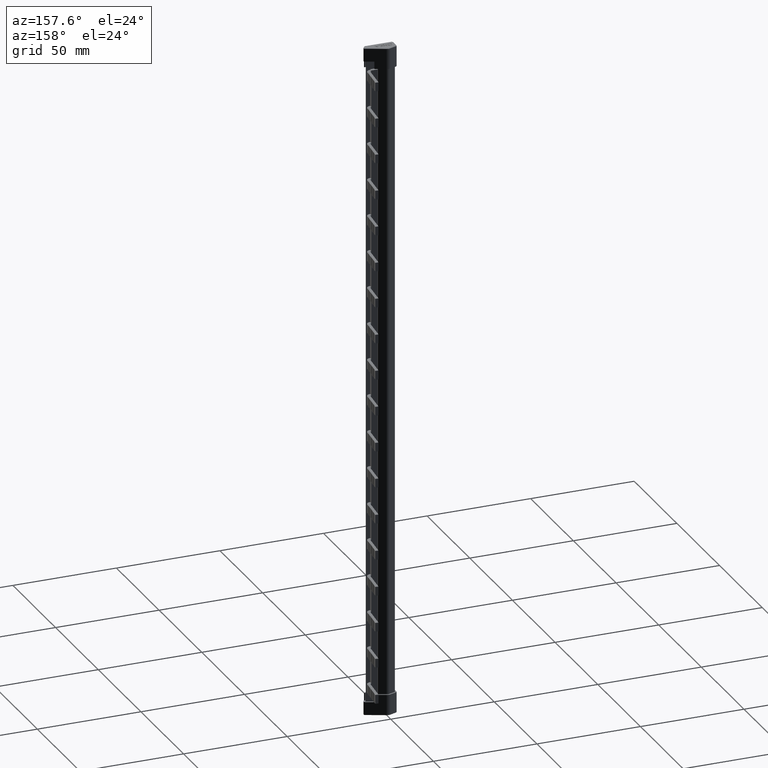
[diagram: clean part render]
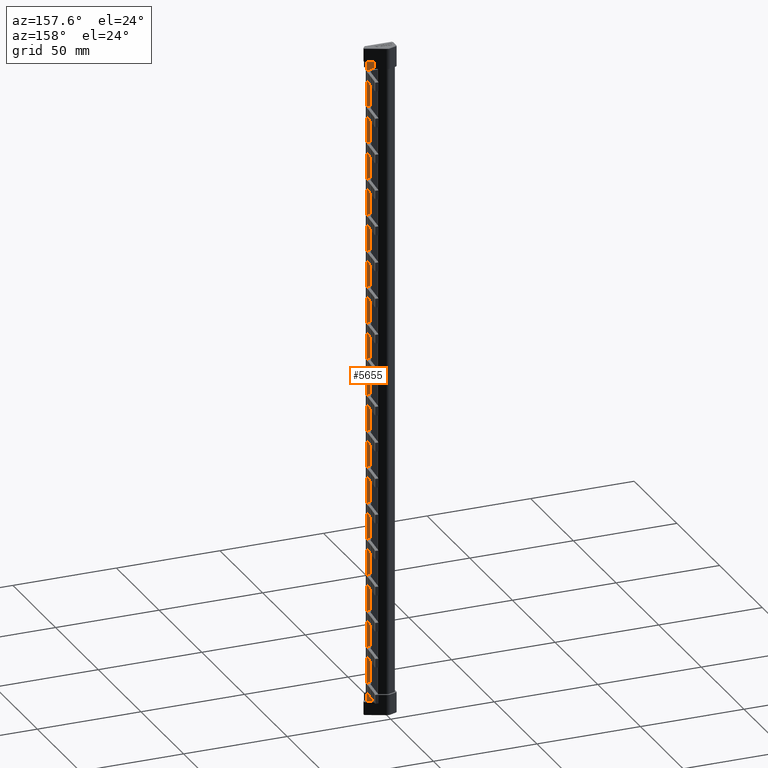
[diagram: same view with one face highlighted and labeled with its STEP entity id]
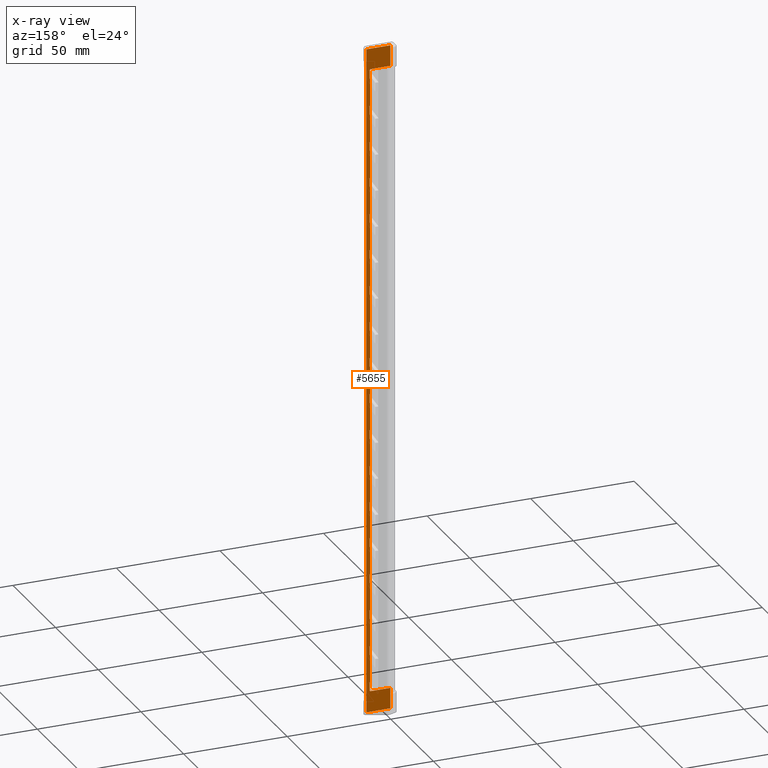
[diagram: x-ray of the same camera — body ghosted, the highlighted face saturated]
A machine part, auxiliary view. The second image highlights one B-rep face of the part: STEP entity #5655.
The next image is the same camera in x-ray: the body ghosted, the highlighted face saturated — about 0% of this face is hidden behind the body in this view.
In plain terms, the highlighted planar face has unit normal (-0, -1, 0).
Its self-contained STEP definition (entity closure, byte-faithful):
#509 = DIRECTION ( 'NONE',  ( -2.028973208167720500E-007, -0.9999999999999794600, 0.0000000000000000000 ) ) ;
#510 = DIRECTION ( 'NONE',  ( 0.9999999999999794600, -2.028973208167720500E-007, 0.0000000000000000000 ) ) ;
#521 = PLANE ( 'NONE',  #29227 ) ;
#523 = FACE_OUTER_BOUND ( 'NONE', #17394, .T. ) ;
#525 = CARTESIAN_POINT ( 'NONE',  ( 12.20616429985077500, 1.099999740055146400, 219.0000000000000000 ) ) ;
#5655 = ADVANCED_FACE ( 'NONE', ( #523 ), #521, .F. ) ;
#6374 = VECTOR ( 'NONE', #19510, 1000.000000000000000 ) ;
#6408 = VECTOR ( 'NONE', #19505, 1000.000000000000000 ) ;
#6420 = VECTOR ( 'NONE', #19557, 1000.000000000000000 ) ;
#6422 = VECTOR ( 'NONE', #15770, 1000.000000000000000 ) ;
#6423 = VECTOR ( 'NONE', #21524, 1000.000000000000000 ) ;
#6425 = VECTOR ( 'NONE', #19518, 1000.000000000000000 ) ;
#6438 = VECTOR ( 'NONE', #15754, 1000.000000000000000 ) ;
#6441 = VECTOR ( 'NONE', #15763, 1000.000000000000000 ) ;
#6445 = VECTOR ( 'NONE', #19551, 1000.000000000000000 ) ;
#6446 = VECTOR ( 'NONE', #15775, 1000.000000000000000 ) ;
#6448 = VECTOR ( 'NONE', #15772, 1000.000000000000000 ) ;
#6451 = VECTOR ( 'NONE', #14779, 1000.000000000000000 ) ;
#6453 = VECTOR ( 'NONE', #19500, 1000.000000000000000 ) ;
#6464 = VECTOR ( 'NONE', #19531, 1000.000000000000000 ) ;
#6467 = VECTOR ( 'NONE', #19582, 1000.000000000000000 ) ;
#6470 = VECTOR ( 'NONE', #15803, 1000.000000000000000 ) ;
#6471 = VECTOR ( 'NONE', #14802, 1000.000000000000000 ) ;
#6484 = VECTOR ( 'NONE', #14914, 1000.000000000000000 ) ;
#6503 = VECTOR ( 'NONE', #14948, 1000.000000000000000 ) ;
#6588 = VECTOR ( 'NONE', #15075, 1000.000000000000000 ) ;
#6611 = VECTOR ( 'NONE', #15092, 1000.000000000000000 ) ;
#6668 = VECTOR ( 'NONE', #15343, 1000.000000000000000 ) ;
#7316 = VECTOR ( 'NONE', #18824, 1000.000000000000000 ) ;
#7321 = VECTOR ( 'NONE', #18713, 1000.000000000000000 ) ;
#7324 = VECTOR ( 'NONE', #18738, 1000.000000000000000 ) ;
#7333 = VECTOR ( 'NONE', #18780, 1000.000000000000000 ) ;
#7334 = VECTOR ( 'NONE', #18790, 1000.000000000000000 ) ;
#7340 = VECTOR ( 'NONE', #18693, 1000.000000000000000 ) ;
#7348 = VECTOR ( 'NONE', #18703, 1000.000000000000000 ) ;
#7362 = VECTOR ( 'NONE', #18762, 1000.000000000000000 ) ;
#7371 = VECTOR ( 'NONE', #18808, 1000.000000000000000 ) ;
#7372 = VECTOR ( 'NONE', #18770, 1000.000000000000000 ) ;
#7373 = VECTOR ( 'NONE', #18840, 1000.000000000000000 ) ;
#7398 = VECTOR ( 'NONE', #19048, 1000.000000000000000 ) ;
#7407 = VECTOR ( 'NONE', #18969, 1000.000000000000000 ) ;
#7420 = VECTOR ( 'NONE', #18865, 1000.000000000000000 ) ;
#7422 = VECTOR ( 'NONE', #18925, 1000.000000000000000 ) ;
#7443 = VECTOR ( 'NONE', #19107, 1000.000000000000000 ) ;
#7446 = VECTOR ( 'NONE', #19096, 1000.000000000000000 ) ;
#7454 = VECTOR ( 'NONE', #19105, 1000.000000000000000 ) ;
#7736 = CARTESIAN_POINT ( 'NONE',  ( 10.58351463784666000, 1.100000069286415400, 219.0000000000000000 ) ) ;
#7740 = DIRECTION ( 'NONE',  ( -0.0000000000000000000, -0.0000000000000000000, -1.000000000000000000 ) ) ;
#7749 = CARTESIAN_POINT ( 'NONE',  ( 10.37430495582775900, 1.100000111734499500, 219.0000000000000000 ) ) ;
#7751 = DIRECTION ( 'NONE',  ( -0.0000000000000000000, -0.0000000000000000000, -1.000000000000000000 ) ) ;
#7754 = LINE ( 'NONE', #7749, #25068 ) ;
#7755 = LINE ( 'NONE', #7757, #25090 ) ;
#7757 = CARTESIAN_POINT ( 'NONE',  ( 10.58351463784666000, 1.100000069286415400, 219.0000000000000000 ) ) ;
#7758 = DIRECTION ( 'NONE',  ( -0.0000000000000000000, -0.0000000000000000000, -1.000000000000000000 ) ) ;
#7762 = DIRECTION ( 'NONE',  ( -0.0000000000000000000, -0.0000000000000000000, -1.000000000000000000 ) ) ;
#7764 = LINE ( 'NONE', #7807, #25093 ) ;
#7779 = LINE ( 'NONE', #7736, #25027 ) ;
#7780 = CARTESIAN_POINT ( 'NONE',  ( 10.58351463784666000, 1.100000069286415400, 219.0000000000000000 ) ) ;
#7807 = CARTESIAN_POINT ( 'NONE',  ( 10.37430495582775900, 1.100000111734499500, 219.0000000000000000 ) ) ;
#7810 = DIRECTION ( 'NONE',  ( -0.0000000000000000000, -0.0000000000000000000, -1.000000000000000000 ) ) ;
#8220 = DIRECTION ( 'NONE',  ( 0.9999999999999794600, -2.028973208167720500E-007, 1.654363045001526200E-024 ) ) ;
#8238 = CARTESIAN_POINT ( 'NONE',  ( 10.39174218936983300, 1.100000108196531400, 116.4000000000000200 ) ) ;
#8268 = CARTESIAN_POINT ( 'NONE',  ( 10.37430495582723300, 1.100000356056294300, 209.0000000000000000 ) ) ;
#8270 = CARTESIAN_POINT ( 'NONE',  ( 10.37430495582775900, 1.100000111734499500, -90.50000000000000000 ) ) ;
#8276 = CARTESIAN_POINT ( 'NONE',  ( 10.58351463784666000, 1.100000069286415400, -59.59999999999995900 ) ) ;
#8279 = CARTESIAN_POINT ( 'NONE',  ( 10.37430495582775900, 1.100000111734499500, 10.80000000000000400 ) ) ;
#8295 = CARTESIAN_POINT ( 'NONE',  ( 10.37430495582775900, 1.100000111734499500, 28.40000000000000900 ) ) ;
#8311 = CARTESIAN_POINT ( 'NONE',  ( 10.37430495582775900, 1.100000111734499500, -77.20000000000001700 ) ) ;
#8313 = CARTESIAN_POINT ( 'NONE',  ( 10.58351463784666000, 1.100000069286415400, -94.79999999999996900 ) ) ;
#8314 = CARTESIAN_POINT ( 'NONE',  ( 10.37430495582775900, 1.100000111734499500, -37.69999999999998200 ) ) ;
#8319 = CARTESIAN_POINT ( 'NONE',  ( 10.58351463784666000, 1.100000069286415400, -20.09999999999998000 ) ) ;
#8323 = CARTESIAN_POINT ( 'NONE',  ( 10.37430495582775900, 1.100000111734499500, -72.89999999999999100 ) ) ;
#8324 = CARTESIAN_POINT ( 'NONE',  ( 0.5999928904458802200, 1.100002094916230400, 209.0000000000000000 ) ) ;
#8329 = CARTESIAN_POINT ( 'NONE',  ( 0.5999928904455424900, 1.100001048311304300, -94.99999999999992900 ) ) ;
#8377 = CARTESIAN_POINT ( 'NONE',  ( 0.5999928904457125800, 1.100000983612816400, 219.0000000000000000 ) ) ;
#8390 = CARTESIAN_POINT ( 'NONE',  ( 10.37430495582740000, 1.099999522800265500, -94.99999999999997200 ) ) ;
#8391 = CARTESIAN_POINT ( 'NONE',  ( 12.20616429985077500, 1.099999740055146900, -104.9999999999999600 ) ) ;
#8407 = CARTESIAN_POINT ( 'NONE',  ( 0.5999928904455442700, 1.100000001706378200, -104.9999999999999400 ) ) ;
#8410 = DIRECTION ( 'NONE',  ( -0.0000000000000000000, -0.0000000000000000000, -1.000000000000000000 ) ) ;
#8414 = CARTESIAN_POINT ( 'NONE',  ( 10.58351463784666000, 1.100000069286415400, 219.0000000000000000 ) ) ;
#8420 = LINE ( 'NONE', #8414, #24997 ) ;
#8432 = LINE ( 'NONE', #8484, #24982 ) ;
#8437 = CARTESIAN_POINT ( 'NONE',  ( 12.20616429985077500, 1.099999893835187800, 219.0000000000000000 ) ) ;
#8484 = CARTESIAN_POINT ( 'NONE',  ( 10.58351463784666000, 1.100000069286415400, 219.0000000000000000 ) ) ;
#8490 = DIRECTION ( 'NONE',  ( -0.0000000000000000000, -0.0000000000000000000, -1.000000000000000000 ) ) ;
#8504 = CARTESIAN_POINT ( 'NONE',  ( 10.58351463784666000, 1.100000069286415400, 219.0000000000000000 ) ) ;
#8515 = CARTESIAN_POINT ( 'NONE',  ( 10.58351463784666000, 1.100000069286415400, 219.0000000000000000 ) ) ;
#8526 = DIRECTION ( 'NONE',  ( -0.0000000000000000000, -0.0000000000000000000, -1.000000000000000000 ) ) ;
#8531 = DIRECTION ( 'NONE',  ( -0.0000000000000000000, -0.0000000000000000000, -1.000000000000000000 ) ) ;
#8541 = LINE ( 'NONE', #8504, #24967 ) ;
#8543 = LINE ( 'NONE', #8515, #24954 ) ;
#8666 = DIRECTION ( 'NONE',  ( -0.0000000000000000000, -0.0000000000000000000, -1.000000000000000000 ) ) ;
#8683 = CARTESIAN_POINT ( 'NONE',  ( 10.58351463784666000, 1.100000069286415400, 219.0000000000000000 ) ) ;
#8684 = LINE ( 'NONE', #8692, #25031 ) ;
#8685 = DIRECTION ( 'NONE',  ( -0.0000000000000000000, -0.0000000000000000000, -1.000000000000000000 ) ) ;
#8692 = CARTESIAN_POINT ( 'NONE',  ( 10.58351463784666000, 1.100000069286415400, 219.0000000000000000 ) ) ;
#8706 = LINE ( 'NONE', #8683, #25061 ) ;
#8729 = LINE ( 'NONE', #8791, #25035 ) ;
#8740 = CARTESIAN_POINT ( 'NONE',  ( 10.58351463784666000, 1.100000069286415400, 219.0000000000000000 ) ) ;
#8746 = DIRECTION ( 'NONE',  ( -0.0000000000000000000, -0.0000000000000000000, -1.000000000000000000 ) ) ;
#8747 = LINE ( 'NONE', #8740, #25046 ) ;
#8757 = DIRECTION ( 'NONE',  ( -0.0000000000000000000, -0.0000000000000000000, -1.000000000000000000 ) ) ;
#8760 = LINE ( 'NONE', #8794, #25051 ) ;
#8762 = CARTESIAN_POINT ( 'NONE',  ( 10.58351463784666000, 1.100000069286415400, 219.0000000000000000 ) ) ;
#8764 = CARTESIAN_POINT ( 'NONE',  ( 10.58351463784666000, 1.100000069286415400, 219.0000000000000000 ) ) ;
#8767 = LINE ( 'NONE', #8238, #24620 ) ;
#8769 = DIRECTION ( 'NONE',  ( -0.0000000000000000000, -0.0000000000000000000, -1.000000000000000000 ) ) ;
#8770 = DIRECTION ( 'NONE',  ( -0.0000000000000000000, -0.0000000000000000000, -1.000000000000000000 ) ) ;
#8772 = CARTESIAN_POINT ( 'NONE',  ( 10.37430495582775900, 1.100000111734499500, 219.0000000000000000 ) ) ;
#8773 = CARTESIAN_POINT ( 'NONE',  ( 10.37430495582775900, 1.100000111734499500, 219.0000000000000000 ) ) ;
#8774 = CARTESIAN_POINT ( 'NONE',  ( 10.37430495582775900, 1.100000111734499500, 219.0000000000000000 ) ) ;
#8778 = LINE ( 'NONE', #8772, #25038 ) ;
#8779 = DIRECTION ( 'NONE',  ( -0.0000000000000000000, -0.0000000000000000000, -1.000000000000000000 ) ) ;
#8780 = LINE ( 'NONE', #8773, #25000 ) ;
#8781 = LINE ( 'NONE', #8762, #25047 ) ;
#8784 = DIRECTION ( 'NONE',  ( -0.0000000000000000000, -0.0000000000000000000, -1.000000000000000000 ) ) ;
#8786 = LINE ( 'NONE', #8774, #25005 ) ;
#8791 = CARTESIAN_POINT ( 'NONE',  ( 10.58351463784666000, 1.100000069286415400, 219.0000000000000000 ) ) ;
#8792 = LINE ( 'NONE', #8764, #25062 ) ;
#8794 = CARTESIAN_POINT ( 'NONE',  ( 10.37430495582775900, 1.100000111734499500, 219.0000000000000000 ) ) ;
#8798 = DIRECTION ( 'NONE',  ( -0.0000000000000000000, -0.0000000000000000000, -1.000000000000000000 ) ) ;
#8799 = DIRECTION ( 'NONE',  ( -0.0000000000000000000, -0.0000000000000000000, -1.000000000000000000 ) ) ;
#8806 = CARTESIAN_POINT ( 'NONE',  ( 10.58351463784666000, 1.100000069286415400, 219.0000000000000000 ) ) ;
#8809 = LINE ( 'NONE', #8837, #25042 ) ;
#8812 = LINE ( 'NONE', #8806, #25012 ) ;
#8818 = CARTESIAN_POINT ( 'NONE',  ( 10.37430495582721900, 1.099998344931796300, 209.0000000000000300 ) ) ;
#8825 = LINE ( 'NONE', #8818, #25040 ) ;
#8826 = DIRECTION ( 'NONE',  ( 1.654357377733165500E-024, 0.0000000000000000000, -1.000000000000000000 ) ) ;
#8828 = DIRECTION ( 'NONE',  ( -0.0000000000000000000, -0.0000000000000000000, -1.000000000000000000 ) ) ;
#8835 = LINE ( 'NONE', #7780, #25002 ) ;
#8837 = CARTESIAN_POINT ( 'NONE',  ( 10.37430495582775900, 1.100000111734499500, 219.0000000000000000 ) ) ;
#8838 = DIRECTION ( 'NONE',  ( -0.0000000000000000000, -0.0000000000000000000, -1.000000000000000000 ) ) ;
#9745 = CARTESIAN_POINT ( 'NONE',  ( 10.37430495582721900, 1.099999853109018300, 208.7000000000000700 ) ) ;
#9782 = CARTESIAN_POINT ( 'NONE',  ( 10.37430495582775900, 1.100000111734499500, 186.8000000000000100 ) ) ;
#9806 = CARTESIAN_POINT ( 'NONE',  ( 10.58351463784666000, 1.100000069286415400, 208.7000000000000700 ) ) ;
#9817 = CARTESIAN_POINT ( 'NONE',  ( 10.58351463784666000, 1.100000069286415400, 120.7000000000000200 ) ) ;
#9824 = CARTESIAN_POINT ( 'NONE',  ( 10.37430495582775900, 1.100000111734499500, 155.9000000000000900 ) ) ;
#9840 = CARTESIAN_POINT ( 'NONE',  ( 10.37430495582775900, 1.100000111734499500, 85.50000000000001400 ) ) ;
#9845 = CARTESIAN_POINT ( 'NONE',  ( 10.37430495582775900, 1.100000111734499500, 46.00000000000001400 ) ) ;
#9849 = CARTESIAN_POINT ( 'NONE',  ( 10.58351463784666000, 1.100000069286415400, 204.4000000000000300 ) ) ;
#9858 = CARTESIAN_POINT ( 'NONE',  ( 10.58351463784666000, 1.100000069286415400, 81.20000000000004500 ) ) ;
#9859 = CARTESIAN_POINT ( 'NONE',  ( 10.58351463784666000, 1.100000069286415400, 63.60000000000001600 ) ) ;
#9864 = CARTESIAN_POINT ( 'NONE',  ( 10.37430495582775900, 1.100000111734499500, 204.4000000000000300 ) ) ;
#9866 = CARTESIAN_POINT ( 'NONE',  ( 10.37430495582775900, 1.100000111734499500, 173.5000000000000300 ) ) ;
#9868 = CARTESIAN_POINT ( 'NONE',  ( 10.37430495582775900, 1.100000111734499500, 103.1000000000000200 ) ) ;
#9873 = CARTESIAN_POINT ( 'NONE',  ( 10.58351463784666000, 1.100000069286415400, 98.80000000000002600 ) ) ;
#9874 = CARTESIAN_POINT ( 'NONE',  ( 10.37430495582721900, 1.099998344931796300, -94.79999999999999700 ) ) ;
#9876 = CARTESIAN_POINT ( 'NONE',  ( 10.37430495582775900, 1.100000111734499500, -20.09999999999998000 ) ) ;
#9878 = CARTESIAN_POINT ( 'NONE',  ( 10.37430495582775900, 1.100000111734499500, 32.70000000000001000 ) ) ;
#9880 = CARTESIAN_POINT ( 'NONE',  ( 10.37430495582775900, 1.100000111734499500, 138.3000000000000400 ) ) ;
#9882 = CARTESIAN_POINT ( 'NONE',  ( 10.58351463784666000, 1.100000069286415400, 116.4000000000000200 ) ) ;
#9883 = CARTESIAN_POINT ( 'NONE',  ( 10.58351463784666000, 1.100000069286415400, 103.1000000000000200 ) ) ;
#9885 = CARTESIAN_POINT ( 'NONE',  ( 10.58351463784666000, 1.100000069286415400, 138.3000000000000400 ) ) ;
#9886 = CARTESIAN_POINT ( 'NONE',  ( 10.58351463784666000, 1.100000069286415400, 173.5000000000000300 ) ) ;
#9887 = CARTESIAN_POINT ( 'NONE',  ( 10.37430495582775900, 1.100000111734499500, 63.60000000000001600 ) ) ;
#9890 = CARTESIAN_POINT ( 'NONE',  ( 10.58351463784666000, 1.100000069286415400, 32.70000000000001000 ) ) ;
#9895 = CARTESIAN_POINT ( 'NONE',  ( 10.37430495582775900, 1.100000111734499500, -2.499999999999974200 ) ) ;
#9898 = CARTESIAN_POINT ( 'NONE',  ( 10.37430495582775900, 1.100000111734499500, 116.4000000000000200 ) ) ;
#9899 = CARTESIAN_POINT ( 'NONE',  ( 10.37430495582775900, 1.100000111734499500, 67.90000000000004800 ) ) ;
#9900 = CARTESIAN_POINT ( 'NONE',  ( 10.58351463784666000, 1.100000069286415400, 186.8000000000000100 ) ) ;
#9904 = CARTESIAN_POINT ( 'NONE',  ( 10.37430495582775900, 1.100000111734499500, 151.6000000000000200 ) ) ;
#9907 = CARTESIAN_POINT ( 'NONE',  ( 10.58351463784666000, 1.100000069286415400, 28.40000000000000900 ) ) ;
#9909 = CARTESIAN_POINT ( 'NONE',  ( 10.58351463784666000, 1.100000069286415400, -2.499999999999974200 ) ) ;
#9911 = CARTESIAN_POINT ( 'NONE',  ( 10.58351463784666000, 1.100000069286415400, -41.99999999999995700 ) ) ;
#9913 = CARTESIAN_POINT ( 'NONE',  ( 10.37430495582775900, 1.100000111734499500, 81.20000000000004500 ) ) ;
#9921 = CARTESIAN_POINT ( 'NONE',  ( 10.37430495582775900, 1.100000111734499500, 169.2000000000000700 ) ) ;
#9923 = CARTESIAN_POINT ( 'NONE',  ( 10.58351463784666000, 1.100000069286415400, 151.6000000000000200 ) ) ;
#9926 = CARTESIAN_POINT ( 'NONE',  ( 10.37430495582775900, 1.100000111734499500, 120.7000000000000200 ) ) ;
#9927 = CARTESIAN_POINT ( 'NONE',  ( 10.58351463784666000, 1.100000069286415400, -37.69999999999998200 ) ) ;
#9929 = CARTESIAN_POINT ( 'NONE',  ( 10.58351463784666000, 1.100000069286415400, 67.90000000000004800 ) ) ;
#9930 = CARTESIAN_POINT ( 'NONE',  ( 10.37430495582775900, 1.100000111734499500, 98.80000000000002600 ) ) ;
#9933 = CARTESIAN_POINT ( 'NONE',  ( 10.58351463784666000, 1.100000069286415400, 134.0000000000000000 ) ) ;
#9934 = CARTESIAN_POINT ( 'NONE',  ( 10.58351463784666000, 1.100000069286415400, 50.30000000000001100 ) ) ;
#9935 = CARTESIAN_POINT ( 'NONE',  ( 10.58351463784666000, 1.100000069286415400, -72.89999999999999100 ) ) ;
#9936 = CARTESIAN_POINT ( 'NONE',  ( 10.58351463784666000, 1.100000069286415400, -77.20000000000001700 ) ) ;
#9937 = CARTESIAN_POINT ( 'NONE',  ( 10.37430495582775900, 1.100000111734499500, 134.0000000000000000 ) ) ;
#9939 = CARTESIAN_POINT ( 'NONE',  ( 10.58351463784666000, 1.100000069286415400, -55.29999999999999000 ) ) ;
#9941 = CARTESIAN_POINT ( 'NONE',  ( 10.58351463784666000, 1.100000069286415400, -6.799999999999972300 ) ) ;
#9942 = CARTESIAN_POINT ( 'NONE',  ( 10.37430495582775900, 1.100000111734499500, -59.59999999999995900 ) ) ;
#9944 = CARTESIAN_POINT ( 'NONE',  ( 10.58351463784666000, 1.100000069286415400, 191.1000000000000200 ) ) ;
#9947 = CARTESIAN_POINT ( 'NONE',  ( 10.58351463784666000, 1.100000069286415400, 169.2000000000000700 ) ) ;
#9949 = CARTESIAN_POINT ( 'NONE',  ( 10.58351463784666000, 1.100000069286415400, 15.10000000000000100 ) ) ;
#9950 = CARTESIAN_POINT ( 'NONE',  ( 10.37430495582775900, 1.100000111734499500, -24.39999999999997700 ) ) ;
#9953 = CARTESIAN_POINT ( 'NONE',  ( 10.37430495582775900, 1.100000111734499500, -41.99999999999995700 ) ) ;
#9959 = CARTESIAN_POINT ( 'NONE',  ( 10.58351463784666000, 1.100000069286415400, 46.00000000000001400 ) ) ;
#9961 = CARTESIAN_POINT ( 'NONE',  ( 10.37430495582775900, 1.100000111734499500, -6.799999999999972300 ) ) ;
#9962 = CARTESIAN_POINT ( 'NONE',  ( 10.58351463784666000, 1.100000069286415400, -90.50000000000000000 ) ) ;
#9963 = CARTESIAN_POINT ( 'NONE',  ( 10.58351463784666000, 1.100000069286415400, 85.50000000000001400 ) ) ;
#9968 = CARTESIAN_POINT ( 'NONE',  ( 10.58351463784666000, 1.100000069286415400, 10.80000000000000400 ) ) ;
#9969 = CARTESIAN_POINT ( 'NONE',  ( 10.58351463784666000, 1.100000069286415400, 155.9000000000000900 ) ) ;
#9970 = CARTESIAN_POINT ( 'NONE',  ( 10.37430495582775900, 1.100000111734499500, 15.10000000000000100 ) ) ;
#9973 = CARTESIAN_POINT ( 'NONE',  ( 10.37430495582775900, 1.100000111734499500, 191.1000000000000200 ) ) ;
#9977 = CARTESIAN_POINT ( 'NONE',  ( 10.37430495582775900, 1.100000111734499500, -55.29999999999999000 ) ) ;
#9981 = CARTESIAN_POINT ( 'NONE',  ( 10.58351463784666000, 1.100000069286415400, -24.39999999999997700 ) ) ;
#9985 = CARTESIAN_POINT ( 'NONE',  ( 10.37430495582775900, 1.100000111734499500, 50.30000000000001100 ) ) ;
#11497 = ORIENTED_EDGE ( 'NONE', *, *, #27564, .T. ) ;
#11498 = ORIENTED_EDGE ( 'NONE', *, *, #27509, .F. ) ;
#11504 = ORIENTED_EDGE ( 'NONE', *, *, #27481, .F. ) ;
#11505 = ORIENTED_EDGE ( 'NONE', *, *, #22721, .F. ) ;
#11515 = ORIENTED_EDGE ( 'NONE', *, *, #21896, .F. ) ;
#11516 = ORIENTED_EDGE ( 'NONE', *, *, #22802, .F. ) ;
#11541 = ORIENTED_EDGE ( 'NONE', *, *, #22669, .F. ) ;
#11543 = ORIENTED_EDGE ( 'NONE', *, *, #22711, .T. ) ;
#11544 = ORIENTED_EDGE ( 'NONE', *, *, #27654, .T. ) ;
#11548 = ORIENTED_EDGE ( 'NONE', *, *, #27472, .F. ) ;
#11552 = ORIENTED_EDGE ( 'NONE', *, *, #27486, .F. ) ;
#11553 = ORIENTED_EDGE ( 'NONE', *, *, #22572, .F. ) ;
#11554 = ORIENTED_EDGE ( 'NONE', *, *, #22698, .T. ) ;
#11557 = ORIENTED_EDGE ( 'NONE', *, *, #22809, .T. ) ;
#11558 = ORIENTED_EDGE ( 'NONE', *, *, #22767, .T. ) ;
#11559 = ORIENTED_EDGE ( 'NONE', *, *, #22811, .T. ) ;
#11560 = ORIENTED_EDGE ( 'NONE', *, *, #22733, .T. ) ;
#11563 = ORIENTED_EDGE ( 'NONE', *, *, #27513, .F. ) ;
#11564 = ORIENTED_EDGE ( 'NONE', *, *, #22808, .T. ) ;
#11565 = ORIENTED_EDGE ( 'NONE', *, *, #27519, .F. ) ;
#11566 = ORIENTED_EDGE ( 'NONE', *, *, #22774, .F. ) ;
#11568 = ORIENTED_EDGE ( 'NONE', *, *, #27602, .T. ) ;
#11569 = ORIENTED_EDGE ( 'NONE', *, *, #27563, .F. ) ;
#11573 = ORIENTED_EDGE ( 'NONE', *, *, #22679, .F. ) ;
#11575 = ORIENTED_EDGE ( 'NONE', *, *, #27485, .F. ) ;
#11576 = ORIENTED_EDGE ( 'NONE', *, *, #21880, .F. ) ;
#11577 = ORIENTED_EDGE ( 'NONE', *, *, #27495, .F. ) ;
#11578 = ORIENTED_EDGE ( 'NONE', *, *, #21920, .F. ) ;
#11581 = ORIENTED_EDGE ( 'NONE', *, *, #22700, .F. ) ;
#11586 = ORIENTED_EDGE ( 'NONE', *, *, #27492, .F. ) ;
#11587 = ORIENTED_EDGE ( 'NONE', *, *, #22724, .T. ) ;
#11589 = ORIENTED_EDGE ( 'NONE', *, *, #27510, .F. ) ;
#11590 = ORIENTED_EDGE ( 'NONE', *, *, #22736, .T. ) ;
#11592 = ORIENTED_EDGE ( 'NONE', *, *, #22750, .F. ) ;
#11593 = ORIENTED_EDGE ( 'NONE', *, *, #21862, .F. ) ;
#11594 = ORIENTED_EDGE ( 'NONE', *, *, #27603, .F. ) ;
#11596 = ORIENTED_EDGE ( 'NONE', *, *, #22714, .F. ) ;
#11598 = ORIENTED_EDGE ( 'NONE', *, *, #21905, .F. ) ;
#11601 = ORIENTED_EDGE ( 'NONE', *, *, #22783, .T. ) ;
#11602 = ORIENTED_EDGE ( 'NONE', *, *, #27506, .F. ) ;
#11603 = ORIENTED_EDGE ( 'NONE', *, *, #21917, .F. ) ;
#11606 = ORIENTED_EDGE ( 'NONE', *, *, #27482, .F. ) ;
#11607 = ORIENTED_EDGE ( 'NONE', *, *, #27507, .F. ) ;
#11608 = ORIENTED_EDGE ( 'NONE', *, *, #27504, .F. ) ;
#11609 = ORIENTED_EDGE ( 'NONE', *, *, #21897, .F. ) ;
#11610 = ORIENTED_EDGE ( 'NONE', *, *, #27473, .F. ) ;
#11612 = ORIENTED_EDGE ( 'NONE', *, *, #22675, .F. ) ;
#11615 = ORIENTED_EDGE ( 'NONE', *, *, #22697, .T. ) ;
#11619 = ORIENTED_EDGE ( 'NONE', *, *, #21784, .F. ) ;
#11620 = ORIENTED_EDGE ( 'NONE', *, *, #21886, .F. ) ;
#11621 = ORIENTED_EDGE ( 'NONE', *, *, #22737, .F. ) ;
#11622 = ORIENTED_EDGE ( 'NONE', *, *, #22658, .T. ) ;
#11623 = ORIENTED_EDGE ( 'NONE', *, *, #22631, .T. ) ;
#11624 = ORIENTED_EDGE ( 'NONE', *, *, #22734, .F. ) ;
#11625 = ORIENTED_EDGE ( 'NONE', *, *, #21875, .F. ) ;
#11626 = ORIENTED_EDGE ( 'NONE', *, *, #22616, .F. ) ;
#11628 = ORIENTED_EDGE ( 'NONE', *, *, #21818, .F. ) ;
#11630 = ORIENTED_EDGE ( 'NONE', *, *, #21825, .F. ) ;
#11631 = ORIENTED_EDGE ( 'NONE', *, *, #22619, .T. ) ;
#11633 = ORIENTED_EDGE ( 'NONE', *, *, #21856, .F. ) ;
#11635 = ORIENTED_EDGE ( 'NONE', *, *, #22642, .F. ) ;
#11636 = ORIENTED_EDGE ( 'NONE', *, *, #21916, .F. ) ;
#11637 = ORIENTED_EDGE ( 'NONE', *, *, #21882, .F. ) ;
#11640 = ORIENTED_EDGE ( 'NONE', *, *, #22644, .T. ) ;
#11641 = ORIENTED_EDGE ( 'NONE', *, *, #21881, .F. ) ;
#11645 = ORIENTED_EDGE ( 'NONE', *, *, #21853, .F. ) ;
#11647 = ORIENTED_EDGE ( 'NONE', *, *, #22745, .T. ) ;
#11648 = ORIENTED_EDGE ( 'NONE', *, *, #22618, .T. ) ;
#11649 = ORIENTED_EDGE ( 'NONE', *, *, #21892, .F. ) ;
#11650 = ORIENTED_EDGE ( 'NONE', *, *, #27470, .F. ) ;
#11654 = ORIENTED_EDGE ( 'NONE', *, *, #22637, .F. ) ;
#11658 = ORIENTED_EDGE ( 'NONE', *, *, #21906, .F. ) ;
#11659 = ORIENTED_EDGE ( 'NONE', *, *, #21885, .F. ) ;
#11660 = ORIENTED_EDGE ( 'NONE', *, *, #27528, .F. ) ;
#11661 = ORIENTED_EDGE ( 'NONE', *, *, #22705, .F. ) ;
#11662 = ORIENTED_EDGE ( 'NONE', *, *, #22534, .T. ) ;
#11668 = ORIENTED_EDGE ( 'NONE', *, *, #21879, .F. ) ;
#11669 = ORIENTED_EDGE ( 'NONE', *, *, #21774, .F. ) ;
#11670 = ORIENTED_EDGE ( 'NONE', *, *, #22546, .F. ) ;
#11671 = ORIENTED_EDGE ( 'NONE', *, *, #22590, .F. ) ;
#14779 = DIRECTION ( 'NONE',  ( -0.0000000000000000000, -0.0000000000000000000, -1.000000000000000000 ) ) ;
#14782 = LINE ( 'NONE', #14810, #6471 ) ;
#14802 = DIRECTION ( 'NONE',  ( -0.0000000000000000000, -0.0000000000000000000, -1.000000000000000000 ) ) ;
#14810 = CARTESIAN_POINT ( 'NONE',  ( 10.37430495582775900, 1.100000111734499500, 219.0000000000000000 ) ) ;
#14914 = DIRECTION ( 'NONE',  ( -1.000000000000000000, 0.0000000000000000000, -3.864550688587524100E-026 ) ) ;
#14915 = CARTESIAN_POINT ( 'NONE',  ( 12.20616429985077500, 1.099999740055146900, 219.0000000000000000 ) ) ;
#14944 = LINE ( 'NONE', #14915, #6503 ) ;
#14945 = LINE ( 'NONE', #14949, #6484 ) ;
#14948 = DIRECTION ( 'NONE',  ( 0.0000000000000000000, 0.0000000000000000000, 1.000000000000000000 ) ) ;
#14949 = CARTESIAN_POINT ( 'NONE',  ( 12.90000028084913100, 1.099999740055146700, -104.9999999999999600 ) ) ;
#15004 = LINE ( 'NONE', #15018, #6611 ) ;
#15018 = CARTESIAN_POINT ( 'NONE',  ( 12.90000028084913100, 1.100000427961109500, 219.0000000000000000 ) ) ;
#15048 = CARTESIAN_POINT ( 'NONE',  ( 0.5999928904460490900, 1.100002094916230400, 219.0000000000000000 ) ) ;
#15067 = LINE ( 'NONE', #15048, #6588 ) ;
#15075 = DIRECTION ( 'NONE',  ( -0.0000000000000000000, -0.0000000000000000000, -1.000000000000000000 ) ) ;
#15092 = DIRECTION ( 'NONE',  ( 1.000000000000000000, 0.0000000000000000000, -3.864550688587524100E-026 ) ) ;
#15313 = CARTESIAN_POINT ( 'NONE',  ( 0.5999928904455442700, 1.100000525008841200, 219.0000000000000000 ) ) ;
#15337 = LINE ( 'NONE', #15313, #6668 ) ;
#15343 = DIRECTION ( 'NONE',  ( 0.0000000000000000000, 0.0000000000000000000, 1.000000000000000000 ) ) ;
#15754 = DIRECTION ( 'NONE',  ( -0.0000000000000000000, -0.0000000000000000000, -1.000000000000000000 ) ) ;
#15757 = LINE ( 'NONE', #15785, #6422 ) ;
#15759 = LINE ( 'NONE', #15788, #6441 ) ;
#15761 = LINE ( 'NONE', #15769, #6448 ) ;
#15763 = DIRECTION ( 'NONE',  ( -0.0000000000000000000, -0.0000000000000000000, -1.000000000000000000 ) ) ;
#15766 = CARTESIAN_POINT ( 'NONE',  ( 10.37430495582775900, 1.100000111734499500, 219.0000000000000000 ) ) ;
#15769 = CARTESIAN_POINT ( 'NONE',  ( 10.58351463784666000, 1.100000069286415400, 219.0000000000000000 ) ) ;
#15770 = DIRECTION ( 'NONE',  ( 1.654357377733165500E-024, 0.0000000000000000000, -1.000000000000000000 ) ) ;
#15771 = CARTESIAN_POINT ( 'NONE',  ( 10.58351463784666000, 1.100000069286415400, 219.0000000000000000 ) ) ;
#15772 = DIRECTION ( 'NONE',  ( -0.0000000000000000000, -0.0000000000000000000, -1.000000000000000000 ) ) ;
#15774 = LINE ( 'NONE', #15771, #6438 ) ;
#15775 = DIRECTION ( 'NONE',  ( -0.0000000000000000000, -0.0000000000000000000, -1.000000000000000000 ) ) ;
#15782 = LINE ( 'NONE', #15766, #6446 ) ;
#15785 = CARTESIAN_POINT ( 'NONE',  ( 10.37430495582721900, 1.099999853109018300, 209.0000000000000300 ) ) ;
#15788 = CARTESIAN_POINT ( 'NONE',  ( 10.37430495582775900, 1.100000111734499500, 219.0000000000000000 ) ) ;
#15801 = LINE ( 'NONE', #15810, #6451 ) ;
#15803 = DIRECTION ( 'NONE',  ( -0.9999999999999794600, 2.028973208167720500E-007, -0.0000000000000000000 ) ) ;
#15807 = CARTESIAN_POINT ( 'NONE',  ( 12.20616429985077500, 1.099999740055146400, -94.99999999999994300 ) ) ;
#15810 = CARTESIAN_POINT ( 'NONE',  ( 10.37430495582775900, 1.100000111734499500, 219.0000000000000000 ) ) ;
#15813 = LINE ( 'NONE', #15807, #6470 ) ;
#17394 = EDGE_LOOP ( 'NONE', ( #11577, #11594, #11568, #11569, #11497, #11544, #11563, #11515, #11558, #11589, #11516, #11578, #11543, #11603, #11505, #11607, #11557, #11498, #11566, #11609, #11601, #11504, #11592, #11552, #11564, #11606, #11596, #11565, #11559, #11593, #11541, #11610, #11560, #11576, #11621, #11636, #11554, #11619, #11581, #11586, #11590, #11630, #11573, #11620, #11587, #11633, #11624, #11660, #11615, #11668, #11661, #11602, #11647, #11598, #11635, #11575, #11622, #11658, #11612, #11650, #11623, #11669, #11654, #11659, #11631, #11625, #11671, #11548, #11648, #11649, #11626, #11637, #11640, #11645, #11553, #11641, #11662, #11628, #11670, #11608 ) ) ;
#17914 = VERTEX_POINT ( 'NONE', #9782 ) ;
#17946 = VERTEX_POINT ( 'NONE', #9745 ) ;
#17949 = VERTEX_POINT ( 'NONE', #9806 ) ;
#17971 = VERTEX_POINT ( 'NONE', #9859 ) ;
#17977 = VERTEX_POINT ( 'NONE', #9845 ) ;
#17981 = VERTEX_POINT ( 'NONE', #9864 ) ;
#17988 = VERTEX_POINT ( 'NONE', #9817 ) ;
#17989 = VERTEX_POINT ( 'NONE', #9866 ) ;
#17998 = VERTEX_POINT ( 'NONE', #9840 ) ;
#18001 = VERTEX_POINT ( 'NONE', #9824 ) ;
#18002 = VERTEX_POINT ( 'NONE', #9868 ) ;
#18006 = VERTEX_POINT ( 'NONE', #9858 ) ;
#18008 = VERTEX_POINT ( 'NONE', #9849 ) ;
#18013 = VERTEX_POINT ( 'NONE', #9913 ) ;
#18016 = VERTEX_POINT ( 'NONE', #9926 ) ;
#18017 = VERTEX_POINT ( 'NONE', #9885 ) ;
#18018 = VERTEX_POINT ( 'NONE', #9898 ) ;
#18030 = VERTEX_POINT ( 'NONE', #9883 ) ;
#18034 = VERTEX_POINT ( 'NONE', #9921 ) ;
#18035 = VERTEX_POINT ( 'NONE', #9899 ) ;
#18036 = VERTEX_POINT ( 'NONE', #9933 ) ;
#18037 = VERTEX_POINT ( 'NONE', #9927 ) ;
#18039 = VERTEX_POINT ( 'NONE', #9876 ) ;
#18041 = VERTEX_POINT ( 'NONE', #9900 ) ;
#18043 = VERTEX_POINT ( 'NONE', #9907 ) ;
#18045 = VERTEX_POINT ( 'NONE', #9923 ) ;
#18047 = VERTEX_POINT ( 'NONE', #9873 ) ;
#18048 = VERTEX_POINT ( 'NONE', #9890 ) ;
#18051 = VERTEX_POINT ( 'NONE', #9909 ) ;
#18054 = VERTEX_POINT ( 'NONE', #9882 ) ;
#18055 = VERTEX_POINT ( 'NONE', #9895 ) ;
#18061 = VERTEX_POINT ( 'NONE', #9911 ) ;
#18062 = VERTEX_POINT ( 'NONE', #9904 ) ;
#18065 = VERTEX_POINT ( 'NONE', #9874 ) ;
#18069 = VERTEX_POINT ( 'NONE', #9878 ) ;
#18070 = VERTEX_POINT ( 'NONE', #9880 ) ;
#18071 = VERTEX_POINT ( 'NONE', #9886 ) ;
#18073 = VERTEX_POINT ( 'NONE', #9887 ) ;
#18074 = VERTEX_POINT ( 'NONE', #9929 ) ;
#18075 = VERTEX_POINT ( 'NONE', #9930 ) ;
#18077 = VERTEX_POINT ( 'NONE', #9949 ) ;
#18080 = VERTEX_POINT ( 'NONE', #9973 ) ;
#18081 = VERTEX_POINT ( 'NONE', #9934 ) ;
#18083 = VERTEX_POINT ( 'NONE', #9968 ) ;
#18084 = VERTEX_POINT ( 'NONE', #9937 ) ;
#18085 = VERTEX_POINT ( 'NONE', #9941 ) ;
#18086 = VERTEX_POINT ( 'NONE', #9953 ) ;
#18088 = VERTEX_POINT ( 'NONE', #9944 ) ;
#18090 = VERTEX_POINT ( 'NONE', #9947 ) ;
#18092 = VERTEX_POINT ( 'NONE', #9963 ) ;
#18093 = VERTEX_POINT ( 'NONE', #9969 ) ;
#18094 = VERTEX_POINT ( 'NONE', #9942 ) ;
#18095 = VERTEX_POINT ( 'NONE', #9970 ) ;
#18096 = VERTEX_POINT ( 'NONE', #9959 ) ;
#18100 = VERTEX_POINT ( 'NONE', #9950 ) ;
#18102 = VERTEX_POINT ( 'NONE', #9981 ) ;
#18114 = VERTEX_POINT ( 'NONE', #9961 ) ;
#18116 = VERTEX_POINT ( 'NONE', #9962 ) ;
#18122 = VERTEX_POINT ( 'NONE', #9977 ) ;
#18125 = VERTEX_POINT ( 'NONE', #9985 ) ;
#18127 = VERTEX_POINT ( 'NONE', #9935 ) ;
#18128 = VERTEX_POINT ( 'NONE', #9936 ) ;
#18130 = VERTEX_POINT ( 'NONE', #9939 ) ;
#18133 = VERTEX_POINT ( 'NONE', #8295 ) ;
#18136 = VERTEX_POINT ( 'NONE', #8319 ) ;
#18138 = VERTEX_POINT ( 'NONE', #8311 ) ;
#18143 = VERTEX_POINT ( 'NONE', #8279 ) ;
#18148 = VERTEX_POINT ( 'NONE', #8313 ) ;
#18153 = VERTEX_POINT ( 'NONE', #8314 ) ;
#18157 = VERTEX_POINT ( 'NONE', #8276 ) ;
#18162 = VERTEX_POINT ( 'NONE', #8323 ) ;
#18178 = VERTEX_POINT ( 'NONE', #8324 ) ;
#18189 = VERTEX_POINT ( 'NONE', #8268 ) ;
#18190 = VERTEX_POINT ( 'NONE', #8270 ) ;
#18196 = VERTEX_POINT ( 'NONE', #8390 ) ;
#18225 = VERTEX_POINT ( 'NONE', #8391 ) ;
#18230 = VERTEX_POINT ( 'NONE', #8329 ) ;
#18241 = VERTEX_POINT ( 'NONE', #8377 ) ;
#18302 = VERTEX_POINT ( 'NONE', #8437 ) ;
#18309 = VERTEX_POINT ( 'NONE', #8407 ) ;
#18604 = CARTESIAN_POINT ( 'NONE',  ( 10.39174218936983300, 1.100000108196531400, 50.30000000000001800 ) ) ;
#18619 = DIRECTION ( 'NONE',  ( 0.9999999999999794600, -2.028973208167720500E-007, 1.654363045001526200E-024 ) ) ;
#18628 = LINE ( 'NONE', #18604, #24690 ) ;
#18629 = DIRECTION ( 'NONE',  ( 0.9999999999999794600, -2.028973208167720500E-007, 1.654363045001526200E-024 ) ) ;
#18639 = CARTESIAN_POINT ( 'NONE',  ( 10.39174218936983300, 1.100000108196531400, 81.20000000000004500 ) ) ;
#18642 = CARTESIAN_POINT ( 'NONE',  ( 10.39174218936983300, 1.100000108196531400, 28.40000000000002300 ) ) ;
#18643 = CARTESIAN_POINT ( 'NONE',  ( 10.39174218936983300, 1.100000108196531400, 32.70000000000000300 ) ) ;
#18644 = LINE ( 'NONE', #18639, #24049 ) ;
#18647 = DIRECTION ( 'NONE',  ( 0.9999999999999794600, -2.028973208167720500E-007, 1.654363045001526200E-024 ) ) ;
#18665 = LINE ( 'NONE', #18642, #24211 ) ;
#18666 = DIRECTION ( 'NONE',  ( 0.9999999999999794600, -2.028973208167720500E-007, 1.654363045001526200E-024 ) ) ;
#18668 = LINE ( 'NONE', #18643, #24485 ) ;
#18672 = DIRECTION ( 'NONE',  ( 0.9999999999999794600, -2.028973208167720500E-007, 1.654363045001526200E-024 ) ) ;
#18683 = LINE ( 'NONE', #18722, #7321 ) ;
#18686 = LINE ( 'NONE', #18710, #7348 ) ;
#18688 = LINE ( 'NONE', #18691, #7340 ) ;
#18691 = CARTESIAN_POINT ( 'NONE',  ( 10.39174218936983300, 1.100000108196531400, -77.19999999999998900 ) ) ;
#18693 = DIRECTION ( 'NONE',  ( 0.9999999999999794600, -2.028973208167720500E-007, 1.654363045001526200E-024 ) ) ;
#18703 = DIRECTION ( 'NONE',  ( 0.9999999999999794600, -2.028973208167720500E-007, 1.654363045001526200E-024 ) ) ;
#18710 = CARTESIAN_POINT ( 'NONE',  ( 10.39174218936983300, 1.100000108196531400, 85.50000000000001400 ) ) ;
#18713 = DIRECTION ( 'NONE',  ( 0.9999999999999794600, -2.028973208167720500E-007, 1.654363045001526200E-024 ) ) ;
#18722 = CARTESIAN_POINT ( 'NONE',  ( 10.39174218936983300, 1.100000108196531400, -20.09999999999998700 ) ) ;
#18725 = CARTESIAN_POINT ( 'NONE',  ( 10.39174218936983300, 1.100000108196531400, 10.80000000000001000 ) ) ;
#18738 = DIRECTION ( 'NONE',  ( 0.9999999999999794600, -2.028973208167720500E-007, 1.654363045001526200E-024 ) ) ;
#18739 = LINE ( 'NONE', #18767, #7324 ) ;
#18744 = LINE ( 'NONE', #18745, #7362 ) ;
#18745 = CARTESIAN_POINT ( 'NONE',  ( 10.39174218936983300, 1.100000108196531400, 63.60000000000001600 ) ) ;
#18752 = LINE ( 'NONE', #18725, #7333 ) ;
#18762 = DIRECTION ( 'NONE',  ( 0.9999999999999794600, -2.028973208167720500E-007, 1.654363045001526200E-024 ) ) ;
#18767 = CARTESIAN_POINT ( 'NONE',  ( 10.39174218936983300, 1.100000108196531400, -72.89999999999999100 ) ) ;
#18770 = DIRECTION ( 'NONE',  ( 0.9999999999999794600, -2.028973208167720500E-007, 1.654363045001526200E-024 ) ) ;
#18772 = LINE ( 'NONE', #18809, #7372 ) ;
#18780 = DIRECTION ( 'NONE',  ( 0.9999999999999794600, -2.028973208167720500E-007, 1.654363045001526200E-024 ) ) ;
#18789 = CARTESIAN_POINT ( 'NONE',  ( 10.39174218936983300, 1.100000108196531400, 67.90000000000004800 ) ) ;
#18790 = DIRECTION ( 'NONE',  ( 0.9999999999999794600, -2.028973208167720500E-007, 1.654363045001526200E-024 ) ) ;
#18798 = LINE ( 'NONE', #18799, #7334 ) ;
#18799 = CARTESIAN_POINT ( 'NONE',  ( 10.39174218936983300, 1.100000108196531400, 46.00000000000002100 ) ) ;
#18806 = CARTESIAN_POINT ( 'NONE',  ( 12.20616429985077500, 1.099999740055146400, 209.0000000000000000 ) ) ;
#18807 = LINE ( 'NONE', #18789, #7371 ) ;
#18808 = DIRECTION ( 'NONE',  ( 0.9999999999999794600, -2.028973208167720500E-007, 1.654363045001526200E-024 ) ) ;
#18809 = CARTESIAN_POINT ( 'NONE',  ( 10.39174218936983300, 1.100000108196531400, 15.09999999999999800 ) ) ;
#18821 = CARTESIAN_POINT ( 'NONE',  ( 10.39174218936983300, 1.100000108196531400, 98.80000000000002600 ) ) ;
#18824 = DIRECTION ( 'NONE',  ( 0.9999999999999794600, -2.028973208167720500E-007, 1.654363045001526200E-024 ) ) ;
#18832 = LINE ( 'NONE', #18821, #7373 ) ;
#18840 = DIRECTION ( 'NONE',  ( 0.9999999999999794600, -2.028973208167720500E-007, 1.654363045001526200E-024 ) ) ;
#18852 = LINE ( 'NONE', #18863, #7316 ) ;
#18863 = CARTESIAN_POINT ( 'NONE',  ( 10.39174218936983300, 1.100000108196531400, -37.69999999999998900 ) ) ;
#18865 = DIRECTION ( 'NONE',  ( 0.9999999999999794600, -2.028973208167720500E-007, 1.654363045001526200E-024 ) ) ;
#18884 = LINE ( 'NONE', #18945, #7422 ) ;
#18901 = LINE ( 'NONE', #18909, #7420 ) ;
#18909 = CARTESIAN_POINT ( 'NONE',  ( 10.39174218936983300, 1.100000108196531400, -94.79999999999999700 ) ) ;
#18925 = DIRECTION ( 'NONE',  ( 0.9999999999999794600, -2.028973208167720500E-007, 1.654363045001526200E-024 ) ) ;
#18945 = CARTESIAN_POINT ( 'NONE',  ( 10.39174218936983300, 1.100000108196531400, -55.29999999999999700 ) ) ;
#18969 = DIRECTION ( 'NONE',  ( 0.9999999999999794600, -2.028973208167720500E-007, 1.654363045001526200E-024 ) ) ;
#18992 = LINE ( 'NONE', #19008, #7407 ) ;
#19008 = CARTESIAN_POINT ( 'NONE',  ( 10.39174218936983300, 1.100000108196531400, -41.99999999999997200 ) ) ;
#19030 = LINE ( 'NONE', #19041, #7398 ) ;
#19041 = CARTESIAN_POINT ( 'NONE',  ( 10.39174218936983300, 1.100000108196531400, -90.50000000000000000 ) ) ;
#19048 = DIRECTION ( 'NONE',  ( 0.9999999999999794600, -2.028973208167720500E-007, 1.654363045001526200E-024 ) ) ;
#19082 = CARTESIAN_POINT ( 'NONE',  ( 10.39174218936983300, 1.100000108196531400, -6.799999999999968700 ) ) ;
#19089 = CARTESIAN_POINT ( 'NONE',  ( 10.39174218936983300, 1.100000108196531400, -24.39999999999997000 ) ) ;
#19090 = CARTESIAN_POINT ( 'NONE',  ( 10.39174218936983300, 1.100000108196531400, -59.59999999999998000 ) ) ;
#19091 = LINE ( 'NONE', #19082, #7454 ) ;
#19093 = LINE ( 'NONE', #19089, #7446 ) ;
#19096 = DIRECTION ( 'NONE',  ( 0.9999999999999794600, -2.028973208167720500E-007, 1.654363045001526200E-024 ) ) ;
#19104 = LINE ( 'NONE', #19090, #7443 ) ;
#19105 = DIRECTION ( 'NONE',  ( 0.9999999999999794600, -2.028973208167720500E-007, 1.654363045001526200E-024 ) ) ;
#19107 = DIRECTION ( 'NONE',  ( 0.9999999999999794600, -2.028973208167720500E-007, 1.654363045001526200E-024 ) ) ;
#19496 = LINE ( 'NONE', #19502, #6464 ) ;
#19500 = DIRECTION ( 'NONE',  ( -0.0000000000000000000, -0.0000000000000000000, -1.000000000000000000 ) ) ;
#19502 = CARTESIAN_POINT ( 'NONE',  ( 10.37430495582775900, 1.100000111734499500, 219.0000000000000000 ) ) ;
#19504 = CARTESIAN_POINT ( 'NONE',  ( 10.37430495582775900, 1.100000111734499500, 219.0000000000000000 ) ) ;
#19505 = DIRECTION ( 'NONE',  ( -0.0000000000000000000, -0.0000000000000000000, -1.000000000000000000 ) ) ;
#19507 = LINE ( 'NONE', #19504, #6408 ) ;
#19508 = LINE ( 'NONE', #19539, #6453 ) ;
#19510 = DIRECTION ( 'NONE',  ( -0.0000000000000000000, -0.0000000000000000000, -1.000000000000000000 ) ) ;
#19516 = LINE ( 'NONE', #19527, #6425 ) ;
#19518 = DIRECTION ( 'NONE',  ( -0.0000000000000000000, -0.0000000000000000000, -1.000000000000000000 ) ) ;
#19521 = CARTESIAN_POINT ( 'NONE',  ( 10.37430495582775900, 1.100000111734499500, 219.0000000000000000 ) ) ;
#19522 = LINE ( 'NONE', #19521, #6374 ) ;
#19527 = CARTESIAN_POINT ( 'NONE',  ( 10.58351463784666000, 1.100000069286415400, 219.0000000000000000 ) ) ;
#19531 = DIRECTION ( 'NONE',  ( -0.0000000000000000000, -0.0000000000000000000, -1.000000000000000000 ) ) ;
#19539 = CARTESIAN_POINT ( 'NONE',  ( 10.58351463784666000, 1.100000069286415400, 219.0000000000000000 ) ) ;
#19544 = LINE ( 'NONE', #19550, #6467 ) ;
#19550 = CARTESIAN_POINT ( 'NONE',  ( 10.37430495582775900, 1.100000111734499500, 219.0000000000000000 ) ) ;
#19551 = DIRECTION ( 'NONE',  ( -0.0000000000000000000, -0.0000000000000000000, -1.000000000000000000 ) ) ;
#19557 = DIRECTION ( 'NONE',  ( -0.0000000000000000000, -0.0000000000000000000, -1.000000000000000000 ) ) ;
#19567 = LINE ( 'NONE', #18806, #6423 ) ;
#19570 = CARTESIAN_POINT ( 'NONE',  ( 10.37430495582775900, 1.100000111734499500, 219.0000000000000000 ) ) ;
#19571 = LINE ( 'NONE', #19570, #6420 ) ;
#19573 = CARTESIAN_POINT ( 'NONE',  ( 10.37430495582775900, 1.100000111734499500, 219.0000000000000000 ) ) ;
#19581 = LINE ( 'NONE', #19573, #6445 ) ;
#19582 = DIRECTION ( 'NONE',  ( -0.0000000000000000000, -0.0000000000000000000, -1.000000000000000000 ) ) ;
#19597 = LINE ( 'NONE', #19600, #24651 ) ;
#19600 = CARTESIAN_POINT ( 'NONE',  ( 10.39174218936983300, 1.100000108196531400, -2.499999999999980000 ) ) ;
#19605 = LINE ( 'NONE', #19609, #24653 ) ;
#19609 = CARTESIAN_POINT ( 'NONE',  ( 10.39174218936983300, 1.100000108196531400, 120.7000000000000200 ) ) ;
#19624 = DIRECTION ( 'NONE',  ( 0.9999999999999794600, -2.028973208167720500E-007, 1.654363045001526200E-024 ) ) ;
#21209 = LINE ( 'NONE', #21223, #24550 ) ;
#21223 = CARTESIAN_POINT ( 'NONE',  ( 10.39174218936983300, 1.100000108196531400, 204.4000000000000300 ) ) ;
#21226 = DIRECTION ( 'NONE',  ( 0.9999999999999794600, -2.028973208167720500E-007, 1.654363045001526200E-024 ) ) ;
#21263 = LINE ( 'NONE', #21268, #24515 ) ;
#21268 = CARTESIAN_POINT ( 'NONE',  ( 10.39174218936983300, 1.100000108196531400, 208.7000000000000700 ) ) ;
#21269 = DIRECTION ( 'NONE',  ( 0.9999999999999794600, -2.028973208167720500E-007, 1.654363045001526200E-024 ) ) ;
#21390 = LINE ( 'NONE', #21401, #24525 ) ;
#21391 = DIRECTION ( 'NONE',  ( 0.9999999999999794600, -2.028973208167720500E-007, 1.654363045001526200E-024 ) ) ;
#21401 = CARTESIAN_POINT ( 'NONE',  ( 10.39174218936983300, 1.100000108196531400, 191.1000000000000200 ) ) ;
#21472 = DIRECTION ( 'NONE',  ( 0.9999999999999794600, -2.028973208167720500E-007, 1.654363045001526200E-024 ) ) ;
#21497 = LINE ( 'NONE', #21509, #24580 ) ;
#21509 = CARTESIAN_POINT ( 'NONE',  ( 10.39174218936983300, 1.100000108196531400, 155.9000000000000900 ) ) ;
#21524 = DIRECTION ( 'NONE',  ( 0.9999999999999794600, -2.028973208167720500E-007, 0.0000000000000000000 ) ) ;
#21571 = DIRECTION ( 'NONE',  ( 0.9999999999999794600, -2.028973208167720500E-007, 1.654363045001526200E-024 ) ) ;
#21577 = DIRECTION ( 'NONE',  ( 0.9999999999999794600, -2.028973208167720500E-007, 1.654363045001526200E-024 ) ) ;
#21582 = CARTESIAN_POINT ( 'NONE',  ( 10.39174218936983300, 1.100000108196531400, 173.5000000000000300 ) ) ;
#21590 = LINE ( 'NONE', #21582, #24584 ) ;
#21591 = DIRECTION ( 'NONE',  ( 0.9999999999999794600, -2.028973208167720500E-007, 1.654363045001526200E-024 ) ) ;
#21592 = CARTESIAN_POINT ( 'NONE',  ( 10.39174218936983300, 1.100000108196531400, 169.2000000000000700 ) ) ;
#21597 = LINE ( 'NONE', #21604, #24552 ) ;
#21602 = LINE ( 'NONE', #21592, #24600 ) ;
#21604 = CARTESIAN_POINT ( 'NONE',  ( 10.39174218936983300, 1.100000108196531400, 151.6000000000000200 ) ) ;
#21611 = LINE ( 'NONE', #21619, #24636 ) ;
#21615 = CARTESIAN_POINT ( 'NONE',  ( 10.39174218936983300, 1.100000108196531400, 186.8000000000000100 ) ) ;
#21619 = CARTESIAN_POINT ( 'NONE',  ( 10.39174218936983300, 1.100000108196531400, 138.3000000000000400 ) ) ;
#21622 = LINE ( 'NONE', #21647, #24560 ) ;
#21625 = DIRECTION ( 'NONE',  ( 0.9999999999999794600, -2.028973208167720500E-007, 1.654363045001526200E-024 ) ) ;
#21634 = LINE ( 'NONE', #21615, #24617 ) ;
#21642 = DIRECTION ( 'NONE',  ( 0.9999999999999794600, -2.028973208167720500E-007, 1.654363045001526200E-024 ) ) ;
#21647 = CARTESIAN_POINT ( 'NONE',  ( 10.39174218936983300, 1.100000108196531400, 134.0000000000000000 ) ) ;
#21658 = DIRECTION ( 'NONE',  ( 0.9999999999999794600, -2.028973208167720500E-007, 1.654363045001526200E-024 ) ) ;
#21680 = DIRECTION ( 'NONE',  ( 0.9999999999999794600, -2.028973208167720500E-007, 1.654363045001526200E-024 ) ) ;
#21681 = LINE ( 'NONE', #21686, #24661 ) ;
#21686 = CARTESIAN_POINT ( 'NONE',  ( 10.39174218936983300, 1.100000108196531400, 103.1000000000000200 ) ) ;
#21774 = EDGE_CURVE ( 'NONE', #18017, #18036, #8420, .T. ) ;
#21784 = EDGE_CURVE ( 'NONE', #18048, #18043, #8432, .T. ) ;
#21818 = EDGE_CURVE ( 'NONE', #17949, #18008, #8541, .T. ) ;
#21825 = EDGE_CURVE ( 'NONE', #18081, #18096, #8543, .T. ) ;
#21853 = EDGE_CURVE ( 'NONE', #18088, #18041, #8706, .T. ) ;
#21856 = EDGE_CURVE ( 'NONE', #18074, #17971, #8684, .T. ) ;
#21862 = EDGE_CURVE ( 'NONE', #18051, #18085, #8747, .T. ) ;
#21875 = EDGE_CURVE ( 'NONE', #18093, #18045, #8729, .T. ) ;
#21879 = EDGE_CURVE ( 'NONE', #18092, #18006, #8792, .T. ) ;
#21880 = EDGE_CURVE ( 'NONE', #18077, #18083, #8781, .T. ) ;
#21881 = EDGE_CURVE ( 'NONE', #17981, #18080, #8760, .T. ) ;
#21882 = EDGE_CURVE ( 'NONE', #17914, #17989, #8778, .T. ) ;
#21885 = EDGE_CURVE ( 'NONE', #18062, #18070, #8786, .T. ) ;
#21886 = EDGE_CURVE ( 'NONE', #18073, #18125, #8780, .T. ) ;
#21892 = EDGE_CURVE ( 'NONE', #18071, #18090, #8812, .T. ) ;
#21896 = EDGE_CURVE ( 'NONE', #18065, #18196, #8825, .T. ) ;
#21897 = EDGE_CURVE ( 'NONE', #18086, #18122, #8809, .T. ) ;
#21905 = EDGE_CURVE ( 'NONE', #18030, #18047, #7779, .T. ) ;
#21906 = EDGE_CURVE ( 'NONE', #17988, #18054, #8835, .T. ) ;
#21916 = EDGE_CURVE ( 'NONE', #18133, #18095, #7754, .T. ) ;
#21917 = EDGE_CURVE ( 'NONE', #18127, #18128, #7755, .T. ) ;
#21920 = EDGE_CURVE ( 'NONE', #18138, #18190, #7764, .T. ) ;
#22534 = EDGE_CURVE ( 'NONE', #17981, #18008, #21209, .T. ) ;
#22546 = EDGE_CURVE ( 'NONE', #17946, #17949, #21263, .T. ) ;
#22572 = EDGE_CURVE ( 'NONE', #18080, #18088, #21390, .T. ) ;
#22590 = EDGE_CURVE ( 'NONE', #18001, #18093, #21497, .T. ) ;
#22616 = EDGE_CURVE ( 'NONE', #17989, #18071, #21590, .T. ) ;
#22618 = EDGE_CURVE ( 'NONE', #18034, #18090, #21602, .T. ) ;
#22619 = EDGE_CURVE ( 'NONE', #18062, #18045, #21597, .T. ) ;
#22631 = EDGE_CURVE ( 'NONE', #18084, #18036, #21622, .T. ) ;
#22637 = EDGE_CURVE ( 'NONE', #18070, #18017, #21611, .T. ) ;
#22642 = EDGE_CURVE ( 'NONE', #18002, #18030, #21681, .T. ) ;
#22644 = EDGE_CURVE ( 'NONE', #17914, #18041, #21634, .T. ) ;
#22658 = EDGE_CURVE ( 'NONE', #18018, #18054, #8767, .T. ) ;
#22669 = EDGE_CURVE ( 'NONE', #18055, #18051, #19597, .T. ) ;
#22675 = EDGE_CURVE ( 'NONE', #18016, #17988, #19605, .T. ) ;
#22679 = EDGE_CURVE ( 'NONE', #18125, #18081, #18628, .T. ) ;
#22697 = EDGE_CURVE ( 'NONE', #18013, #18006, #18644, .T. ) ;
#22698 = EDGE_CURVE ( 'NONE', #18133, #18043, #18665, .T. ) ;
#22700 = EDGE_CURVE ( 'NONE', #18069, #18048, #18668, .T. ) ;
#22705 = EDGE_CURVE ( 'NONE', #17998, #18092, #18686, .T. ) ;
#22711 = EDGE_CURVE ( 'NONE', #18138, #18128, #18688, .T. ) ;
#22714 = EDGE_CURVE ( 'NONE', #18039, #18136, #18683, .T. ) ;
#22721 = EDGE_CURVE ( 'NONE', #18162, #18127, #18739, .T. ) ;
#22724 = EDGE_CURVE ( 'NONE', #18073, #17971, #18744, .T. ) ;
#22733 = EDGE_CURVE ( 'NONE', #18143, #18083, #18752, .T. ) ;
#22734 = EDGE_CURVE ( 'NONE', #18035, #18074, #18807, .T. ) ;
#22736 = EDGE_CURVE ( 'NONE', #17977, #18096, #18798, .T. ) ;
#22737 = EDGE_CURVE ( 'NONE', #18095, #18077, #18772, .T. ) ;
#22745 = EDGE_CURVE ( 'NONE', #18075, #18047, #18832, .T. ) ;
#22750 = EDGE_CURVE ( 'NONE', #18153, #18037, #18852, .T. ) ;
#22767 = EDGE_CURVE ( 'NONE', #18065, #18148, #18901, .T. ) ;
#22774 = EDGE_CURVE ( 'NONE', #18122, #18130, #18884, .T. ) ;
#22783 = EDGE_CURVE ( 'NONE', #18086, #18061, #18992, .T. ) ;
#22802 = EDGE_CURVE ( 'NONE', #18190, #18116, #19030, .T. ) ;
#22808 = EDGE_CURVE ( 'NONE', #18100, #18102, #19093, .T. ) ;
#22809 = EDGE_CURVE ( 'NONE', #18094, #18157, #19104, .T. ) ;
#22811 = EDGE_CURVE ( 'NONE', #18114, #18085, #19091, .T. ) ;
#24049 = VECTOR ( 'NONE', #18672, 1000.000000000000000 ) ;
#24211 = VECTOR ( 'NONE', #18666, 1000.000000000000000 ) ;
#24485 = VECTOR ( 'NONE', #18647, 1000.000000000000000 ) ;
#24515 = VECTOR ( 'NONE', #21269, 1000.000000000000000 ) ;
#24525 = VECTOR ( 'NONE', #21391, 1000.000000000000000 ) ;
#24550 = VECTOR ( 'NONE', #21226, 1000.000000000000000 ) ;
#24552 = VECTOR ( 'NONE', #21571, 1000.000000000000000 ) ;
#24560 = VECTOR ( 'NONE', #21642, 1000.000000000000000 ) ;
#24580 = VECTOR ( 'NONE', #21472, 1000.000000000000000 ) ;
#24584 = VECTOR ( 'NONE', #21591, 1000.000000000000000 ) ;
#24600 = VECTOR ( 'NONE', #21577, 1000.000000000000000 ) ;
#24617 = VECTOR ( 'NONE', #21680, 1000.000000000000000 ) ;
#24620 = VECTOR ( 'NONE', #8220, 1000.000000000000000 ) ;
#24636 = VECTOR ( 'NONE', #21625, 1000.000000000000000 ) ;
#24651 = VECTOR ( 'NONE', #19624, 1000.000000000000000 ) ;
#24653 = VECTOR ( 'NONE', #18619, 1000.000000000000000 ) ;
#24661 = VECTOR ( 'NONE', #21658, 1000.000000000000000 ) ;
#24690 = VECTOR ( 'NONE', #18629, 1000.000000000000000 ) ;
#24954 = VECTOR ( 'NONE', #8531, 1000.000000000000000 ) ;
#24967 = VECTOR ( 'NONE', #8526, 1000.000000000000000 ) ;
#24982 = VECTOR ( 'NONE', #8490, 1000.000000000000000 ) ;
#24997 = VECTOR ( 'NONE', #8410, 1000.000000000000000 ) ;
#25000 = VECTOR ( 'NONE', #8770, 1000.000000000000000 ) ;
#25002 = VECTOR ( 'NONE', #7740, 1000.000000000000000 ) ;
#25005 = VECTOR ( 'NONE', #8799, 1000.000000000000000 ) ;
#25012 = VECTOR ( 'NONE', #8838, 1000.000000000000000 ) ;
#25027 = VECTOR ( 'NONE', #7751, 1000.000000000000000 ) ;
#25031 = VECTOR ( 'NONE', #8685, 1000.000000000000000 ) ;
#25035 = VECTOR ( 'NONE', #8784, 1000.000000000000000 ) ;
#25038 = VECTOR ( 'NONE', #8779, 1000.000000000000000 ) ;
#25040 = VECTOR ( 'NONE', #8826, 1000.000000000000000 ) ;
#25042 = VECTOR ( 'NONE', #8828, 1000.000000000000000 ) ;
#25046 = VECTOR ( 'NONE', #8746, 1000.000000000000000 ) ;
#25047 = VECTOR ( 'NONE', #8769, 1000.000000000000000 ) ;
#25051 = VECTOR ( 'NONE', #8757, 1000.000000000000000 ) ;
#25061 = VECTOR ( 'NONE', #8666, 1000.000000000000000 ) ;
#25062 = VECTOR ( 'NONE', #8798, 1000.000000000000000 ) ;
#25068 = VECTOR ( 'NONE', #7762, 1000.000000000000000 ) ;
#25090 = VECTOR ( 'NONE', #7758, 1000.000000000000000 ) ;
#25093 = VECTOR ( 'NONE', #7810, 1000.000000000000000 ) ;
#27470 = EDGE_CURVE ( 'NONE', #18084, #18016, #19507, .T. ) ;
#27472 = EDGE_CURVE ( 'NONE', #18034, #18001, #19522, .T. ) ;
#27473 = EDGE_CURVE ( 'NONE', #18143, #18055, #19496, .T. ) ;
#27481 = EDGE_CURVE ( 'NONE', #18037, #18061, #19508, .T. ) ;
#27482 = EDGE_CURVE ( 'NONE', #18136, #18102, #19516, .T. ) ;
#27485 = EDGE_CURVE ( 'NONE', #18018, #18002, #19571, .T. ) ;
#27486 = EDGE_CURVE ( 'NONE', #18100, #18153, #19544, .T. ) ;
#27492 = EDGE_CURVE ( 'NONE', #17977, #18069, #19581, .T. ) ;
#27495 = EDGE_CURVE ( 'NONE', #18178, #18189, #19567, .T. ) ;
#27504 = EDGE_CURVE ( 'NONE', #18189, #17946, #15757, .T. ) ;
#27506 = EDGE_CURVE ( 'NONE', #18075, #17998, #15782, .T. ) ;
#27507 = EDGE_CURVE ( 'NONE', #18094, #18162, #15759, .T. ) ;
#27509 = EDGE_CURVE ( 'NONE', #18130, #18157, #15774, .T. ) ;
#27510 = EDGE_CURVE ( 'NONE', #18116, #18148, #15761, .T. ) ;
#27513 = EDGE_CURVE ( 'NONE', #18196, #18230, #15813, .T. ) ;
#27519 = EDGE_CURVE ( 'NONE', #18114, #18039, #15801, .T. ) ;
#27528 = EDGE_CURVE ( 'NONE', #18013, #18035, #14782, .T. ) ;
#27563 = EDGE_CURVE ( 'NONE', #18225, #18302, #14944, .T. ) ;
#27564 = EDGE_CURVE ( 'NONE', #18225, #18309, #14945, .T. ) ;
#27602 = EDGE_CURVE ( 'NONE', #18241, #18302, #15004, .T. ) ;
#27603 = EDGE_CURVE ( 'NONE', #18241, #18178, #15067, .T. ) ;
#27654 = EDGE_CURVE ( 'NONE', #18309, #18230, #15337, .T. ) ;
#29227 = AXIS2_PLACEMENT_3D ( 'NONE', #525, #509, #510 ) ;